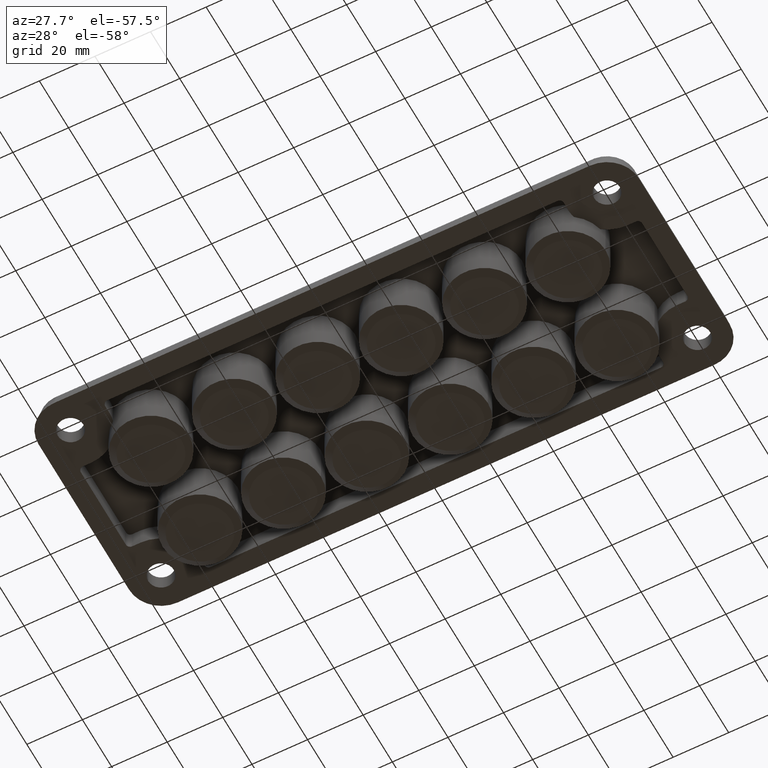
[diagram: clean part render]
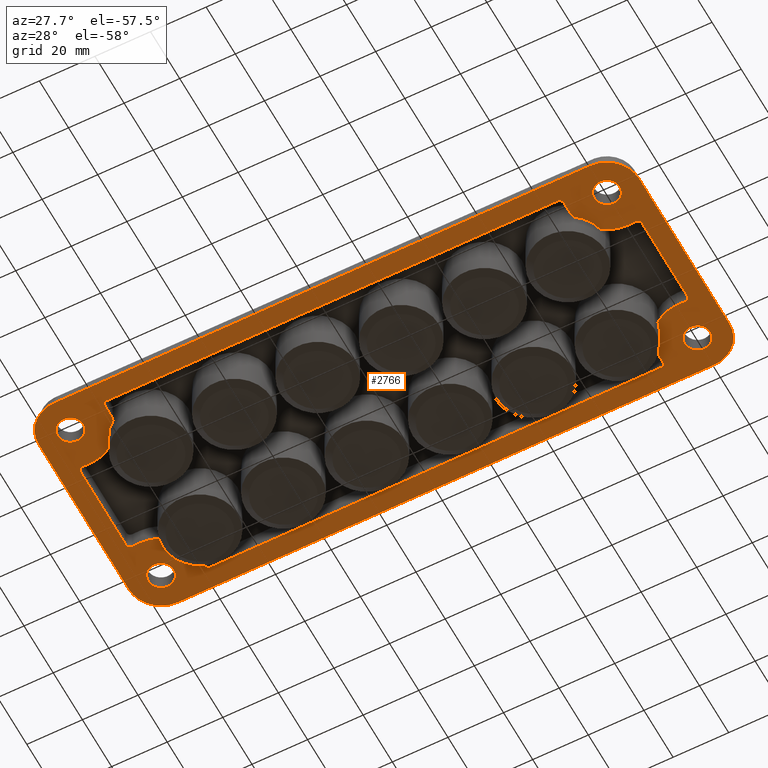
[diagram: same view with one face highlighted and labeled with its STEP entity id]
A machine part, auxiliary view. The second image highlights one B-rep face of the part: STEP entity #2766.
In plain terms, the highlighted planar face has unit normal (-0, 0, -1).
Its self-contained STEP definition (entity closure, byte-faithful):
#13 = EDGE_CURVE ( 'NONE', #1695, #3143, #4645, .T. ) ;
#21 = VERTEX_POINT ( 'NONE', #242 ) ;
#35 = DIRECTION ( 'NONE',  ( 1.000000000000000000, 0.0000000000000000000, 0.0000000000000000000 ) ) ;
#40 = VERTEX_POINT ( 'NONE', #958 ) ;
#47 = EDGE_CURVE ( 'NONE', #1801, #4639, #1500, .T. ) ;
#50 = EDGE_CURVE ( 'NONE', #1746, #1924, #3616, .T. ) ;
#62 = CARTESIAN_POINT ( 'NONE',  ( -81.00000000000000000, 35.50000000000000700, 0.0000000000000000000 ) ) ;
#77 = CARTESIAN_POINT ( 'NONE',  ( 101.0000000000000000, -15.49999999999997300, 0.0000000000000000000 ) ) ;
#91 = VERTEX_POINT ( 'NONE', #4095 ) ;
#92 = DIRECTION ( 'NONE',  ( -1.000000000000000000, 0.0000000000000000000, 0.0000000000000000000 ) ) ;
#99 = DIRECTION ( 'NONE',  ( -1.000000000000000000, 0.0000000000000000000, 0.0000000000000000000 ) ) ;
#103 = AXIS2_PLACEMENT_3D ( 'NONE', #2184, #1805, #2934 ) ;
#107 = CIRCLE ( 'NONE', #3050, 11.50000000000001100 ) ;
#130 = PLANE ( 'NONE',  #3017 ) ;
#136 = EDGE_CURVE ( 'NONE', #865, #4223, #486, .T. ) ;
#146 = CARTESIAN_POINT ( 'NONE',  ( -96.50000000000000000, 30.99999999999998900, 0.0000000000000000000 ) ) ;
#154 = VERTEX_POINT ( 'NONE', #769 ) ;
#161 = VECTOR ( 'NONE', #3355, 1000.000000000000000 ) ;
#167 = DIRECTION ( 'NONE',  ( -2.238352872228139600E-016, -1.000000000000000000, -0.0000000000000000000 ) ) ;
#173 = EDGE_CURVE ( 'NONE', #1775, #1958, #1026, .T. ) ;
#174 = FACE_BOUND ( 'NONE', #1510, .T. ) ;
#178 = CARTESIAN_POINT ( 'NONE',  ( 96.50000000000000000, -31.00000000000000000, 0.0000000000000000000 ) ) ;
#183 = DIRECTION ( 'NONE',  ( 0.0000000000000000000, 0.0000000000000000000, 1.000000000000000000 ) ) ;
#187 = DIRECTION ( 'NONE',  ( -1.000000000000000000, 0.0000000000000000000, 0.0000000000000000000 ) ) ;
#201 = EDGE_LOOP ( 'NONE', ( #2364, #4889 ) ) ;
#203 = ORIENTED_EDGE ( 'NONE', *, *, #4744, .F. ) ;
#215 = LINE ( 'NONE', #4301, #1815 ) ;
#222 = CARTESIAN_POINT ( 'NONE',  ( 107.9999999999999700, 30.99999999999999300, 0.0000000000000000000 ) ) ;
#225 = FACE_BOUND ( 'NONE', #201, .T. ) ;
#235 = CARTESIAN_POINT ( 'NONE',  ( -96.50000000000000000, 30.99999999999998600, 0.0000000000000000000 ) ) ;
#242 = CARTESIAN_POINT ( 'NONE',  ( -82.50000000000000000, 31.00000000000000000, 0.0000000000000000000 ) ) ;
#260 = DIRECTION ( 'NONE',  ( -1.000000000000000000, 0.0000000000000000000, 0.0000000000000000000 ) ) ;
#274 = AXIS2_PLACEMENT_3D ( 'NONE', #1136, #3011, #1898 ) ;
#281 = AXIS2_PLACEMENT_3D ( 'NONE', #337, #4073, #1089 ) ;
#282 = DIRECTION ( 'NONE',  ( 0.0000000000000000000, -1.000000000000000000, 0.0000000000000000000 ) ) ;
#288 = DIRECTION ( 'NONE',  ( 4.625929269271567400E-015, 1.000000000000000000, -0.0000000000000000000 ) ) ;
#289 = DIRECTION ( 'NONE',  ( 0.0000000000000000000, 0.0000000000000000000, -1.000000000000000000 ) ) ;
#292 = CIRCLE ( 'NONE', #831, 4.599999999999992500 ) ;
#293 = CARTESIAN_POINT ( 'NONE',  ( -96.50000000000000000, 30.99999999999998600, 0.0000000000000000000 ) ) ;
#321 = EDGE_CURVE ( 'NONE', #1988, #4271, #2317, .T. ) ;
#327 = DIRECTION ( 'NONE',  ( -1.000000000000000000, 0.0000000000000000000, 0.0000000000000000000 ) ) ;
#332 = DIRECTION ( 'NONE',  ( -1.000000000000000000, 0.0000000000000000000, 0.0000000000000000000 ) ) ;
#337 = CARTESIAN_POINT ( 'NONE',  ( 96.50000000000000000, -31.00000000000005700, 0.0000000000000000000 ) ) ;
#385 = CARTESIAN_POINT ( 'NONE',  ( 82.50000000000001400, -33.99999999999993600, 0.0000000000000000000 ) ) ;
#387 = ORIENTED_EDGE ( 'NONE', *, *, #3052, .F. ) ;
#411 = DIRECTION ( 'NONE',  ( -1.000000000000000000, 0.0000000000000000000, 0.0000000000000000000 ) ) ;
#458 = EDGE_CURVE ( 'NONE', #154, #2304, #4455, .T. ) ;
#461 = CIRCLE ( 'NONE', #3471, 13.49999999999999800 ) ;
#482 = CARTESIAN_POINT ( 'NONE',  ( -99.50000000000000000, 16.99999999999999300, 0.0000000000000000000 ) ) ;
#486 = LINE ( 'NONE', #2933, #2380 ) ;
#492 = VERTEX_POINT ( 'NONE', #3755 ) ;
#530 = CARTESIAN_POINT ( 'NONE',  ( 82.87964365212545200, 27.76180714642976000, 0.0000000000000000000 ) ) ;
#543 = EDGE_CURVE ( 'NONE', #1694, #3489, #1434, .T. ) ;
#559 = VERTEX_POINT ( 'NONE', #2960 ) ;
#570 = CARTESIAN_POINT ( 'NONE',  ( 96.50000000000000000, 30.99999999999994300, 0.0000000000000000000 ) ) ;
#583 = EDGE_CURVE ( 'NONE', #4600, #154, #2666, .T. ) ;
#597 = VERTEX_POINT ( 'NONE', #2658 ) ;
#602 = CARTESIAN_POINT ( 'NONE',  ( 99.50000000000000000, -15.49999999999997300, 0.0000000000000000000 ) ) ;
#631 = CIRCLE ( 'NONE', #3827, 4.599999999999992500 ) ;
#641 = DIRECTION ( 'NONE',  ( -1.000000000000000000, 0.0000000000000000000, 0.0000000000000000000 ) ) ;
#644 = DIRECTION ( 'NONE',  ( 1.000000000000000000, 0.0000000000000000000, 0.0000000000000000000 ) ) ;
#645 = EDGE_CURVE ( 'NONE', #2090, #2451, #2427, .T. ) ;
#652 = AXIS2_PLACEMENT_3D ( 'NONE', #2486, #4396, #2102 ) ;
#657 = CARTESIAN_POINT ( 'NONE',  ( -96.50000000000000000, -17.00000000000000000, 0.0000000000000000000 ) ) ;
#660 = ORIENTED_EDGE ( 'NONE', *, *, #3543, .T. ) ;
#675 = VERTEX_POINT ( 'NONE', #3466 ) ;
#707 = EDGE_CURVE ( 'NONE', #4639, #1988, #2140, .T. ) ;
#729 = DIRECTION ( 'NONE',  ( 0.0000000000000000000, 0.0000000000000000000, 1.000000000000000000 ) ) ;
#735 = VECTOR ( 'NONE', #2125, 1000.000000000000000 ) ;
#756 = EDGE_LOOP ( 'NONE', ( #2503, #4465 ) ) ;
#760 = CIRCLE ( 'NONE', #1814, 1.499999999999987600 ) ;
#761 = CIRCLE ( 'NONE', #3277, 4.599999999999992500 ) ;
#769 = CARTESIAN_POINT ( 'NONE',  ( -81.00000000000001400, -35.50000000000004300, 0.0000000000000000000 ) ) ;
#772 = CARTESIAN_POINT ( 'NONE',  ( 91.90000000000000600, -31.00000000000005700, 0.0000000000000000000 ) ) ;
#781 = CARTESIAN_POINT ( 'NONE',  ( -99.50000000000000000, 15.49999999999999800, 0.0000000000000000000 ) ) ;
#783 = DIRECTION ( 'NONE',  ( -4.625929269271556300E-015, -1.000000000000000000, -0.0000000000000000000 ) ) ;
#813 = ORIENTED_EDGE ( 'NONE', *, *, #4456, .F. ) ;
#827 = CIRCLE ( 'NONE', #103, 1.500000000000056800 ) ;
#831 = AXIS2_PLACEMENT_3D ( 'NONE', #1833, #1060, #2932 ) ;
#841 = CARTESIAN_POINT ( 'NONE',  ( 96.50000000000000000, -16.99999999999997900, 0.0000000000000000000 ) ) ;
#865 = VERTEX_POINT ( 'NONE', #657 ) ;
#868 = DIRECTION ( 'NONE',  ( 1.000000000000000000, 0.0000000000000000000, 0.0000000000000000000 ) ) ;
#873 = CIRCLE ( 'NONE', #3571, 11.50000000000001100 ) ;
#882 = CIRCLE ( 'NONE', #4253, 13.99999999999999800 ) ;
#893 = DIRECTION ( 'NONE',  ( -0.0000000000000000000, 0.0000000000000000000, -1.000000000000000000 ) ) ;
#894 = CARTESIAN_POINT ( 'NONE',  ( -82.50000000000002800, -30.99999999999997900, 0.0000000000000000000 ) ) ;
#902 = CARTESIAN_POINT ( 'NONE',  ( -107.9999999999999900, -30.99999999999996400, 0.0000000000000000000 ) ) ;
#916 = DIRECTION ( 'NONE',  ( 1.000000000000000000, 0.0000000000000000000, 0.0000000000000000000 ) ) ;
#934 = AXIS2_PLACEMENT_3D ( 'NONE', #4246, #3101, #868 ) ;
#935 = CARTESIAN_POINT ( 'NONE',  ( 96.50000000000000000, 31.00000000000000000, 0.0000000000000000000 ) ) ;
#956 = AXIS2_PLACEMENT_3D ( 'NONE', #293, #2589, #332 ) ;
#958 = CARTESIAN_POINT ( 'NONE',  ( 96.49999999999997200, 42.50000000000000000, 0.0000000000000000000 ) ) ;
#982 = ORIENTED_EDGE ( 'NONE', *, *, #1568, .F. ) ;
#984 = EDGE_CURVE ( 'NONE', #2304, #1775, #3664, .T. ) ;
#987 = EDGE_LOOP ( 'NONE', ( #1386, #813, #3681, #4836, #3054, #4577, #2426, #4151 ) ) ;
#995 = LINE ( 'NONE', #1358, #3939 ) ;
#1008 = ORIENTED_EDGE ( 'NONE', *, *, #2759, .F. ) ;
#1023 = CARTESIAN_POINT ( 'NONE',  ( 82.50000000000001400, 31.00000000000000000, 0.0000000000000000000 ) ) ;
#1026 = CIRCLE ( 'NONE', #4431, 13.99999999999999800 ) ;
#1044 = CIRCLE ( 'NONE', #274, 13.49999999999999800 ) ;
#1060 = DIRECTION ( 'NONE',  ( 0.0000000000000000000, 0.0000000000000000000, 1.000000000000000000 ) ) ;
#1089 = DIRECTION ( 'NONE',  ( -1.000000000000000000, 0.0000000000000000000, 0.0000000000000000000 ) ) ;
#1118 = DIRECTION ( 'NONE',  ( -1.000000000000000000, 0.0000000000000000000, 0.0000000000000000000 ) ) ;
#1133 = EDGE_CURVE ( 'NONE', #4271, #3635, #2599, .T. ) ;
#1136 = CARTESIAN_POINT ( 'NONE',  ( -75.00000000000000000, 16.79999999999999400, 0.0000000000000000000 ) ) ;
#1148 = AXIS2_PLACEMENT_3D ( 'NONE', #781, #1530, #3747 ) ;
#1165 = CARTESIAN_POINT ( 'NONE',  ( -96.50000000000000000, 16.99999999999999600, 0.0000000000000000000 ) ) ;
#1178 = CIRCLE ( 'NONE', #934, 1.500000000000056800 ) ;
#1183 = DIRECTION ( 'NONE',  ( -0.0000000000000000000, -0.0000000000000000000, -1.000000000000000000 ) ) ;
#1207 = VERTEX_POINT ( 'NONE', #2393 ) ;
#1226 = CARTESIAN_POINT ( 'NONE',  ( -91.90000000000000600, 30.99999999999998600, 0.0000000000000000000 ) ) ;
#1274 = CIRCLE ( 'NONE', #3764, 13.99999999999999800 ) ;
#1289 = DIRECTION ( 'NONE',  ( -1.000000000000000000, 0.0000000000000000000, 0.0000000000000000000 ) ) ;
#1313 = VERTEX_POINT ( 'NONE', #3200 ) ;
#1326 = ORIENTED_EDGE ( 'NONE', *, *, #3717, .F. ) ;
#1343 = LINE ( 'NONE', #4462, #3403 ) ;
#1344 = EDGE_CURVE ( 'NONE', #2796, #21, #2191, .T. ) ;
#1358 = CARTESIAN_POINT ( 'NONE',  ( 101.0000000000000000, 15.49999999999999800, 0.0000000000000000000 ) ) ;
#1359 = ORIENTED_EDGE ( 'NONE', *, *, #3485, .F. ) ;
#1360 = AXIS2_PLACEMENT_3D ( 'NONE', #4666, #183, #2062 ) ;
#1381 = ORIENTED_EDGE ( 'NONE', *, *, #2076, .F. ) ;
#1386 = ORIENTED_EDGE ( 'NONE', *, *, #4707, .F. ) ;
#1400 = EDGE_CURVE ( 'NONE', #675, #4881, #292, .T. ) ;
#1434 = CIRCLE ( 'NONE', #956, 4.599999999999992500 ) ;
#1483 = VERTEX_POINT ( 'NONE', #1023 ) ;
#1497 = VERTEX_POINT ( 'NONE', #4840 ) ;
#1500 = CIRCLE ( 'NONE', #2175, 13.49999999999999800 ) ;
#1503 = CARTESIAN_POINT ( 'NONE',  ( -99.50000000000000000, -15.49999999999997300, 0.0000000000000000000 ) ) ;
#1510 = EDGE_LOOP ( 'NONE', ( #2627, #4512 ) ) ;
#1530 = DIRECTION ( 'NONE',  ( 0.0000000000000000000, 0.0000000000000000000, -1.000000000000000000 ) ) ;
#1568 = EDGE_CURVE ( 'NONE', #2771, #2796, #1044, .T. ) ;
#1572 = CARTESIAN_POINT ( 'NONE',  ( -82.50000000000000000, 33.99999999999995000, 0.0000000000000000000 ) ) ;
#1586 = EDGE_CURVE ( 'NONE', #1924, #40, #873, .T. ) ;
#1588 = CIRCLE ( 'NONE', #4569, 13.99999999999999800 ) ;
#1595 = DIRECTION ( 'NONE',  ( 1.000000000000000000, 0.0000000000000000000, 0.0000000000000000000 ) ) ;
#1607 = VERTEX_POINT ( 'NONE', #4511 ) ;
#1625 = ORIENTED_EDGE ( 'NONE', *, *, #3776, .F. ) ;
#1636 = VERTEX_POINT ( 'NONE', #2615 ) ;
#1648 = ORIENTED_EDGE ( 'NONE', *, *, #2514, .F. ) ;
#1656 = LINE ( 'NONE', #2024, #3523 ) ;
#1668 = CARTESIAN_POINT ( 'NONE',  ( 96.50000000000000000, -16.99999999999997900, 0.0000000000000000000 ) ) ;
#1669 = EDGE_CURVE ( 'NONE', #1607, #3562, #2689, .T. ) ;
#1694 = VERTEX_POINT ( 'NONE', #1226 ) ;
#1695 = VERTEX_POINT ( 'NONE', #482 ) ;
#1701 = DIRECTION ( 'NONE',  ( 1.000000000000000000, 0.0000000000000000000, 0.0000000000000000000 ) ) ;
#1707 = CARTESIAN_POINT ( 'NONE',  ( -82.87964365212545200, 27.76180714642976000, 0.0000000000000000000 ) ) ;
#1710 = CARTESIAN_POINT ( 'NONE',  ( 82.50000000000001400, -33.99999999999993600, 0.0000000000000000000 ) ) ;
#1713 = FACE_OUTER_BOUND ( 'NONE', #987, .T. ) ;
#1725 = ORIENTED_EDGE ( 'NONE', *, *, #3965, .T. ) ;
#1727 = VECTOR ( 'NONE', #2626, 1000.000000000000000 ) ;
#1746 = VERTEX_POINT ( 'NONE', #4345 ) ;
#1747 = ORIENTED_EDGE ( 'NONE', *, *, #321, .F. ) ;
#1760 = CARTESIAN_POINT ( 'NONE',  ( 107.9999999999999900, -30.99999999999996400, 0.0000000000000000000 ) ) ;
#1763 = CARTESIAN_POINT ( 'NONE',  ( -81.00000000000001400, -33.99999999999993600, 0.0000000000000000000 ) ) ;
#1769 = DIRECTION ( 'NONE',  ( -1.000000000000000000, 0.0000000000000000000, 0.0000000000000000000 ) ) ;
#1770 = AXIS2_PLACEMENT_3D ( 'NONE', #2784, #4320, #92 ) ;
#1775 = VERTEX_POINT ( 'NONE', #894 ) ;
#1795 = ORIENTED_EDGE ( 'NONE', *, *, #136, .F. ) ;
#1801 = VERTEX_POINT ( 'NONE', #530 ) ;
#1805 = DIRECTION ( 'NONE',  ( 0.0000000000000000000, 0.0000000000000000000, -1.000000000000000000 ) ) ;
#1814 = AXIS2_PLACEMENT_3D ( 'NONE', #1503, #1183, #1595 ) ;
#1815 = VECTOR ( 'NONE', #3114, 1000.000000000000000 ) ;
#1829 = EDGE_CURVE ( 'NONE', #2451, #1607, #1274, .T. ) ;
#1833 = CARTESIAN_POINT ( 'NONE',  ( -96.50000000000001400, -31.00000000000001400, 0.0000000000000000000 ) ) ;
#1835 = CARTESIAN_POINT ( 'NONE',  ( 96.50000000000000000, 30.99999999999994300, 0.0000000000000000000 ) ) ;
#1848 = VERTEX_POINT ( 'NONE', #3168 ) ;
#1866 = VERTEX_POINT ( 'NONE', #4672 ) ;
#1870 = CARTESIAN_POINT ( 'NONE',  ( 101.0000000000000000, 15.49999999999999800, 0.0000000000000000000 ) ) ;
#1885 = CARTESIAN_POINT ( 'NONE',  ( -96.49999999999997200, 42.50000000000004300, 0.0000000000000000000 ) ) ;
#1898 = DIRECTION ( 'NONE',  ( -1.000000000000000000, 0.0000000000000000000, 0.0000000000000000000 ) ) ;
#1924 = VERTEX_POINT ( 'NONE', #222 ) ;
#1929 = DIRECTION ( 'NONE',  ( -1.000000000000000000, -5.782411586589351700E-015, -0.0000000000000000000 ) ) ;
#1932 = AXIS2_PLACEMENT_3D ( 'NONE', #4709, #2041, #916 ) ;
#1933 = CIRCLE ( 'NONE', #1360, 13.99999999999999800 ) ;
#1958 = VERTEX_POINT ( 'NONE', #4001 ) ;
#1977 = CARTESIAN_POINT ( 'NONE',  ( -82.50000000000007100, -33.99999999999993600, 0.0000000000000000000 ) ) ;
#1986 = CARTESIAN_POINT ( 'NONE',  ( 75.00000000000000000, -16.80000000000001100, 0.0000000000000000000 ) ) ;
#1988 = VERTEX_POINT ( 'NONE', #4765 ) ;
#2007 = CIRCLE ( 'NONE', #4180, 13.99999999999999800 ) ;
#2024 = CARTESIAN_POINT ( 'NONE',  ( -107.9999999999999900, -30.99999999999996400, 0.0000000000000000000 ) ) ;
#2026 = EDGE_LOOP ( 'NONE', ( #3930, #203, #4825, #1008, #1381, #387, #2147, #4828, #982, #2965, #3978, #2198, #2161, #1625, #1795, #1359, #4892, #2211, #3611, #3492, #4110, #1648, #3651, #1326, #3551, #2104, #2864, #2035, #2741, #3505, #1747, #3633 ) ) ;
#2035 = ORIENTED_EDGE ( 'NONE', *, *, #3525, .F. ) ;
#2041 = DIRECTION ( 'NONE',  ( -0.0000000000000000000, -0.0000000000000000000, -1.000000000000000000 ) ) ;
#2062 = DIRECTION ( 'NONE',  ( 1.000000000000000000, 0.0000000000000000000, 0.0000000000000000000 ) ) ;
#2076 = EDGE_CURVE ( 'NONE', #4655, #4713, #2681, .T. ) ;
#2090 = VERTEX_POINT ( 'NONE', #3667 ) ;
#2095 = AXIS2_PLACEMENT_3D ( 'NONE', #602, #3218, #4838 ) ;
#2101 = DIRECTION ( 'NONE',  ( -0.0000000000000000000, -0.0000000000000000000, 1.000000000000000000 ) ) ;
#2102 = DIRECTION ( 'NONE',  ( 1.000000000000000000, 0.0000000000000000000, 0.0000000000000000000 ) ) ;
#2104 = ORIENTED_EDGE ( 'NONE', *, *, #1829, .F. ) ;
#2125 = DIRECTION ( 'NONE',  ( 1.000000000000000000, 3.469446951953611000E-015, -0.0000000000000000000 ) ) ;
#2140 = CIRCLE ( 'NONE', #1770, 13.99999999999999800 ) ;
#2143 = VERTEX_POINT ( 'NONE', #1572 ) ;
#2144 = DIRECTION ( 'NONE',  ( 0.0000000000000000000, 0.0000000000000000000, 1.000000000000000000 ) ) ;
#2147 = ORIENTED_EDGE ( 'NONE', *, *, #2976, .F. ) ;
#2149 = DIRECTION ( 'NONE',  ( -0.0000000000000000000, -0.0000000000000000000, -1.000000000000000000 ) ) ;
#2161 = ORIENTED_EDGE ( 'NONE', *, *, #3549, .F. ) ;
#2165 = CARTESIAN_POINT ( 'NONE',  ( 96.50000000000001400, -30.99999999999996800, 0.0000000000000000000 ) ) ;
#2175 = AXIS2_PLACEMENT_3D ( 'NONE', #2890, #2149, #4804 ) ;
#2184 = CARTESIAN_POINT ( 'NONE',  ( -81.00000000000000000, 33.99999999999995000, 0.0000000000000000000 ) ) ;
#2191 = CIRCLE ( 'NONE', #652, 13.99999999999999800 ) ;
#2198 = ORIENTED_EDGE ( 'NONE', *, *, #3104, .F. ) ;
#2211 = ORIENTED_EDGE ( 'NONE', *, *, #173, .F. ) ;
#2236 = DIRECTION ( 'NONE',  ( -1.000000000000000000, 0.0000000000000000000, 0.0000000000000000000 ) ) ;
#2239 = DIRECTION ( 'NONE',  ( -1.000000000000000000, 5.782411586589351700E-015, 0.0000000000000000000 ) ) ;
#2283 = CARTESIAN_POINT ( 'NONE',  ( -96.50000000000000000, -31.00000000000000000, 0.0000000000000000000 ) ) ;
#2295 = DIRECTION ( 'NONE',  ( 0.0000000000000000000, 0.0000000000000000000, 1.000000000000000000 ) ) ;
#2304 = VERTEX_POINT ( 'NONE', #1977 ) ;
#2310 = DIRECTION ( 'NONE',  ( 0.0000000000000000000, 0.0000000000000000000, 1.000000000000000000 ) ) ;
#2317 = LINE ( 'NONE', #3273, #4573 ) ;
#2355 = CARTESIAN_POINT ( 'NONE',  ( -96.50000000000001400, -31.00000000000001400, 0.0000000000000000000 ) ) ;
#2364 = ORIENTED_EDGE ( 'NONE', *, *, #2900, .T. ) ;
#2380 = VECTOR ( 'NONE', #2239, 1000.000000000000000 ) ;
#2388 = CARTESIAN_POINT ( 'NONE',  ( -96.50000000000000000, 30.99999999999998900, 0.0000000000000000000 ) ) ;
#2393 = CARTESIAN_POINT ( 'NONE',  ( 82.50000000000005700, 33.99999999999995000, 0.0000000000000000000 ) ) ;
#2401 = CIRCLE ( 'NONE', #2095, 1.499999999999987600 ) ;
#2406 = DIRECTION ( 'NONE',  ( 1.000000000000000000, 0.0000000000000000000, 0.0000000000000000000 ) ) ;
#2426 = ORIENTED_EDGE ( 'NONE', *, *, #4086, .F. ) ;
#2427 = LINE ( 'NONE', #841, #3125 ) ;
#2428 = DIRECTION ( 'NONE',  ( 0.0000000000000000000, 0.0000000000000000000, 1.000000000000000000 ) ) ;
#2433 = CARTESIAN_POINT ( 'NONE',  ( 81.00000000000000000, 35.50000000000005700, 0.0000000000000000000 ) ) ;
#2451 = VERTEX_POINT ( 'NONE', #1668 ) ;
#2471 = AXIS2_PLACEMENT_3D ( 'NONE', #1986, #4653, #3834 ) ;
#2481 = CARTESIAN_POINT ( 'NONE',  ( -101.1000000000000100, -31.00000000000001400, 0.0000000000000000000 ) ) ;
#2486 = CARTESIAN_POINT ( 'NONE',  ( -96.50000000000000000, 31.00000000000000000, 0.0000000000000000000 ) ) ;
#2503 = ORIENTED_EDGE ( 'NONE', *, *, #543, .T. ) ;
#2506 = CARTESIAN_POINT ( 'NONE',  ( -96.50000000000000000, 16.99999999999999600, 0.0000000000000000000 ) ) ;
#2510 = CIRCLE ( 'NONE', #2874, 4.599999999999992500 ) ;
#2514 = EDGE_CURVE ( 'NONE', #3445, #4600, #3826, .T. ) ;
#2515 = LINE ( 'NONE', #385, #4419 ) ;
#2518 = DIRECTION ( 'NONE',  ( 0.0000000000000000000, 0.0000000000000000000, 1.000000000000000000 ) ) ;
#2542 = CARTESIAN_POINT ( 'NONE',  ( 82.87964365212543800, -27.76180714642980300, 0.0000000000000000000 ) ) ;
#2549 = CARTESIAN_POINT ( 'NONE',  ( -82.50000000000000000, 33.99999999999995000, 0.0000000000000000000 ) ) ;
#2589 = DIRECTION ( 'NONE',  ( 0.0000000000000000000, 0.0000000000000000000, 1.000000000000000000 ) ) ;
#2597 = EDGE_LOOP ( 'NONE', ( #1725, #660 ) ) ;
#2599 = CIRCLE ( 'NONE', #1932, 1.500000000000001300 ) ;
#2615 = CARTESIAN_POINT ( 'NONE',  ( 101.0999999999999900, -31.00000000000005700, 0.0000000000000000000 ) ) ;
#2626 = DIRECTION ( 'NONE',  ( -4.625929269271556300E-015, 1.000000000000000000, 0.0000000000000000000 ) ) ;
#2627 = ORIENTED_EDGE ( 'NONE', *, *, #1400, .T. ) ;
#2649 = CARTESIAN_POINT ( 'NONE',  ( 99.50000000000000000, 16.99999999999998600, 0.0000000000000000000 ) ) ;
#2658 = CARTESIAN_POINT ( 'NONE',  ( -101.0000000000000000, 15.49999999999999800, 0.0000000000000000000 ) ) ;
#2666 = LINE ( 'NONE', #4183, #4449 ) ;
#2681 = LINE ( 'NONE', #4505, #4348 ) ;
#2689 = CIRCLE ( 'NONE', #2471, 13.49999999999999800 ) ;
#2733 = CARTESIAN_POINT ( 'NONE',  ( 81.00000000000001400, -35.49999999999999300, 0.0000000000000000000 ) ) ;
#2741 = ORIENTED_EDGE ( 'NONE', *, *, #4912, .F. ) ;
#2751 = CIRCLE ( 'NONE', #4610, 11.50000000000001100 ) ;
#2759 = EDGE_CURVE ( 'NONE', #4713, #1207, #1178, .T. ) ;
#2766 = ADVANCED_FACE ( 'NONE', ( #3770, #3468, #225, #174, #4127, #1713 ), #130, .T. ) ;
#2771 = VERTEX_POINT ( 'NONE', #3900 ) ;
#2784 = CARTESIAN_POINT ( 'NONE',  ( 96.50000000000000000, 31.00000000000000000, 0.0000000000000000000 ) ) ;
#2796 = VERTEX_POINT ( 'NONE', #1707 ) ;
#2815 = DIRECTION ( 'NONE',  ( -0.0000000000000000000, -0.0000000000000000000, 1.000000000000000000 ) ) ;
#2818 = VECTOR ( 'NONE', #288, 1000.000000000000000 ) ;
#2864 = ORIENTED_EDGE ( 'NONE', *, *, #645, .F. ) ;
#2865 = CARTESIAN_POINT ( 'NONE',  ( -96.50000000000000000, -31.00000000000000000, 0.0000000000000000000 ) ) ;
#2874 = AXIS2_PLACEMENT_3D ( 'NONE', #3425, #2310, #411 ) ;
#2890 = CARTESIAN_POINT ( 'NONE',  ( 75.00000000000000000, 16.79999999999999400, 0.0000000000000000000 ) ) ;
#2900 = EDGE_CURVE ( 'NONE', #559, #1848, #3590, .T. ) ;
#2932 = DIRECTION ( 'NONE',  ( -1.000000000000000000, 0.0000000000000000000, 0.0000000000000000000 ) ) ;
#2933 = CARTESIAN_POINT ( 'NONE',  ( -96.50000000000000000, -16.99999999999997900, 0.0000000000000000000 ) ) ;
#2934 = DIRECTION ( 'NONE',  ( -1.000000000000000000, 0.0000000000000000000, 0.0000000000000000000 ) ) ;
#2938 = EDGE_CURVE ( 'NONE', #1958, #4473, #461, .T. ) ;
#2960 = CARTESIAN_POINT ( 'NONE',  ( 101.0999999999999900, 30.99999999999994300, 0.0000000000000000000 ) ) ;
#2965 = ORIENTED_EDGE ( 'NONE', *, *, #4161, .F. ) ;
#2976 = EDGE_CURVE ( 'NONE', #21, #2143, #3709, .T. ) ;
#2984 = CARTESIAN_POINT ( 'NONE',  ( -99.50000000000000000, -16.99999999999996100, 0.0000000000000000000 ) ) ;
#2989 = CARTESIAN_POINT ( 'NONE',  ( -96.49999999999997200, 42.50000000000004300, 0.0000000000000000000 ) ) ;
#2990 = DIRECTION ( 'NONE',  ( -0.0000000000000000000, -0.0000000000000000000, 1.000000000000000000 ) ) ;
#2998 = CARTESIAN_POINT ( 'NONE',  ( -88.17506420610409600, -19.74409292737762600, 0.0000000000000000000 ) ) ;
#3011 = DIRECTION ( 'NONE',  ( -0.0000000000000000000, -0.0000000000000000000, -1.000000000000000000 ) ) ;
#3017 = AXIS2_PLACEMENT_3D ( 'NONE', #146, #893, #3522 ) ;
#3039 = DIRECTION ( 'NONE',  ( 4.625929269271567400E-015, -1.000000000000000000, 0.0000000000000000000 ) ) ;
#3050 = AXIS2_PLACEMENT_3D ( 'NONE', #2165, #2144, #1769 ) ;
#3052 = EDGE_CURVE ( 'NONE', #2143, #4655, #827, .T. ) ;
#3054 = ORIENTED_EDGE ( 'NONE', *, *, #4323, .F. ) ;
#3056 = DIRECTION ( 'NONE',  ( 0.0000000000000000000, 0.0000000000000000000, 1.000000000000000000 ) ) ;
#3096 = AXIS2_PLACEMENT_3D ( 'NONE', #2388, #3131, #3552 ) ;
#3101 = DIRECTION ( 'NONE',  ( -0.0000000000000000000, -0.0000000000000000000, -1.000000000000000000 ) ) ;
#3104 = EDGE_CURVE ( 'NONE', #597, #1695, #3219, .T. ) ;
#3114 = DIRECTION ( 'NONE',  ( 1.000000000000000000, 0.0000000000000000000, 0.0000000000000000000 ) ) ;
#3125 = VECTOR ( 'NONE', #1929, 1000.000000000000000 ) ;
#3131 = DIRECTION ( 'NONE',  ( 0.0000000000000000000, 0.0000000000000000000, 1.000000000000000000 ) ) ;
#3143 = VERTEX_POINT ( 'NONE', #1165 ) ;
#3168 = CARTESIAN_POINT ( 'NONE',  ( 91.90000000000000600, 30.99999999999994300, 0.0000000000000000000 ) ) ;
#3200 = CARTESIAN_POINT ( 'NONE',  ( -100.9999999999999900, -15.49999999999997300, 0.0000000000000000000 ) ) ;
#3216 = LINE ( 'NONE', #2989, #161 ) ;
#3218 = DIRECTION ( 'NONE',  ( 0.0000000000000000000, 0.0000000000000000000, -1.000000000000000000 ) ) ;
#3219 = CIRCLE ( 'NONE', #1148, 1.500000000000001300 ) ;
#3241 = DIRECTION ( 'NONE',  ( -1.000000000000000000, 0.0000000000000000000, 0.0000000000000000000 ) ) ;
#3270 = CIRCLE ( 'NONE', #3926, 4.599999999999992500 ) ;
#3273 = CARTESIAN_POINT ( 'NONE',  ( 96.50000000000000000, 16.99999999999999600, 0.0000000000000000000 ) ) ;
#3277 = AXIS2_PLACEMENT_3D ( 'NONE', #1835, #729, #2236 ) ;
#3287 = DIRECTION ( 'NONE',  ( -0.0000000000000000000, -0.0000000000000000000, -1.000000000000000000 ) ) ;
#3305 = DIRECTION ( 'NONE',  ( -0.0000000000000000000, -0.0000000000000000000, -1.000000000000000000 ) ) ;
#3319 = EDGE_CURVE ( 'NONE', #1866, #4159, #1656, .T. ) ;
#3355 = DIRECTION ( 'NONE',  ( -1.000000000000000000, -0.0000000000000000000, -0.0000000000000000000 ) ) ;
#3364 = DIRECTION ( 'NONE',  ( 1.000000000000000000, 0.0000000000000000000, 0.0000000000000000000 ) ) ;
#3403 = VECTOR ( 'NONE', #3721, 1000.000000000000000 ) ;
#3425 = CARTESIAN_POINT ( 'NONE',  ( 96.50000000000000000, -31.00000000000005700, 0.0000000000000000000 ) ) ;
#3435 = CARTESIAN_POINT ( 'NONE',  ( 88.17506420610408200, 19.74409292737762900, 0.0000000000000000000 ) ) ;
#3445 = VERTEX_POINT ( 'NONE', #1710 ) ;
#3466 = CARTESIAN_POINT ( 'NONE',  ( -91.90000000000002000, -31.00000000000001400, 0.0000000000000000000 ) ) ;
#3468 = FACE_BOUND ( 'NONE', #2597, .T. ) ;
#3471 = AXIS2_PLACEMENT_3D ( 'NONE', #4299, #3305, #327 ) ;
#3477 = EDGE_CURVE ( 'NONE', #3489, #1694, #3270, .T. ) ;
#3485 = EDGE_CURVE ( 'NONE', #4473, #865, #2007, .T. ) ;
#3489 = VERTEX_POINT ( 'NONE', #4771 ) ;
#3492 = ORIENTED_EDGE ( 'NONE', *, *, #458, .F. ) ;
#3505 = ORIENTED_EDGE ( 'NONE', *, *, #1133, .F. ) ;
#3522 = DIRECTION ( 'NONE',  ( -1.000000000000000000, 0.0000000000000000000, 0.0000000000000000000 ) ) ;
#3523 = VECTOR ( 'NONE', #167, 1000.000000000000000 ) ;
#3525 = EDGE_CURVE ( 'NONE', #3814, #2090, #2401, .T. ) ;
#3541 = DIRECTION ( 'NONE',  ( 0.0000000000000000000, 0.0000000000000000000, 1.000000000000000000 ) ) ;
#3543 = EDGE_CURVE ( 'NONE', #3868, #1636, #4303, .T. ) ;
#3549 = EDGE_CURVE ( 'NONE', #1313, #597, #1343, .T. ) ;
#3551 = ORIENTED_EDGE ( 'NONE', *, *, #1669, .F. ) ;
#3552 = DIRECTION ( 'NONE',  ( -1.000000000000000000, 0.0000000000000000000, 0.0000000000000000000 ) ) ;
#3562 = VERTEX_POINT ( 'NONE', #2542 ) ;
#3571 = AXIS2_PLACEMENT_3D ( 'NONE', #4126, #2295, #35 ) ;
#3590 = CIRCLE ( 'NONE', #4248, 4.599999999999992500 ) ;
#3593 = DIRECTION ( 'NONE',  ( 0.0000000000000000000, 0.0000000000000000000, 1.000000000000000000 ) ) ;
#3611 = ORIENTED_EDGE ( 'NONE', *, *, #984, .F. ) ;
#3616 = LINE ( 'NONE', #1760, #4520 ) ;
#3633 = ORIENTED_EDGE ( 'NONE', *, *, #707, .F. ) ;
#3635 = VERTEX_POINT ( 'NONE', #1870 ) ;
#3651 = ORIENTED_EDGE ( 'NONE', *, *, #3839, .F. ) ;
#3661 = CARTESIAN_POINT ( 'NONE',  ( 81.00000000000001400, -33.99999999999993600, 0.0000000000000000000 ) ) ;
#3664 = LINE ( 'NONE', #4911, #1727 ) ;
#3667 = CARTESIAN_POINT ( 'NONE',  ( 99.50000000000000000, -16.99999999999996800, 0.0000000000000000000 ) ) ;
#3681 = ORIENTED_EDGE ( 'NONE', *, *, #1586, .F. ) ;
#3682 = VERTEX_POINT ( 'NONE', #1885 ) ;
#3709 = LINE ( 'NONE', #2549, #2818 ) ;
#3717 = EDGE_CURVE ( 'NONE', #3562, #492, #882, .T. ) ;
#3721 = DIRECTION ( 'NONE',  ( -0.0000000000000000000, 1.000000000000000000, -0.0000000000000000000 ) ) ;
#3747 = DIRECTION ( 'NONE',  ( -1.000000000000000000, 0.0000000000000000000, 0.0000000000000000000 ) ) ;
#3755 = CARTESIAN_POINT ( 'NONE',  ( 82.50000000000000000, -30.99999999999997900, 0.0000000000000000000 ) ) ;
#3761 = CARTESIAN_POINT ( 'NONE',  ( 96.50000000000000000, -31.00000000000000000, 0.0000000000000000000 ) ) ;
#3764 = AXIS2_PLACEMENT_3D ( 'NONE', #178, #3593, #2406 ) ;
#3770 = FACE_BOUND ( 'NONE', #2026, .T. ) ;
#3776 = EDGE_CURVE ( 'NONE', #4223, #1313, #760, .T. ) ;
#3814 = VERTEX_POINT ( 'NONE', #77 ) ;
#3826 = CIRCLE ( 'NONE', #4827, 1.500000000000056800 ) ;
#3827 = AXIS2_PLACEMENT_3D ( 'NONE', #2355, #3056, #99 ) ;
#3833 = EDGE_CURVE ( 'NONE', #4881, #675, #631, .T. ) ;
#3834 = DIRECTION ( 'NONE',  ( -1.000000000000000000, 0.0000000000000000000, 0.0000000000000000000 ) ) ;
#3839 = EDGE_CURVE ( 'NONE', #492, #3445, #2515, .T. ) ;
#3845 = DIRECTION ( 'NONE',  ( -1.000000000000000000, -0.0000000000000000000, -0.0000000000000000000 ) ) ;
#3868 = VERTEX_POINT ( 'NONE', #772 ) ;
#3900 = CARTESIAN_POINT ( 'NONE',  ( -88.17506420610408200, 19.74409292737762900, 0.0000000000000000000 ) ) ;
#3911 = CARTESIAN_POINT ( 'NONE',  ( -96.50000000000001400, -30.99999999999996800, 0.0000000000000000000 ) ) ;
#3926 = AXIS2_PLACEMENT_3D ( 'NONE', #235, #2518, #641 ) ;
#3930 = ORIENTED_EDGE ( 'NONE', *, *, #47, .F. ) ;
#3939 = VECTOR ( 'NONE', #282, 1000.000000000000000 ) ;
#3965 = EDGE_CURVE ( 'NONE', #1636, #3868, #2510, .T. ) ;
#3978 = ORIENTED_EDGE ( 'NONE', *, *, #13, .F. ) ;
#4001 = CARTESIAN_POINT ( 'NONE',  ( -82.87964365212543800, -27.76180714642980300, 0.0000000000000000000 ) ) ;
#4010 = DIRECTION ( 'NONE',  ( 1.000000000000000000, -3.469446951953611000E-015, 0.0000000000000000000 ) ) ;
#4073 = DIRECTION ( 'NONE',  ( 0.0000000000000000000, 0.0000000000000000000, 1.000000000000000000 ) ) ;
#4086 = EDGE_CURVE ( 'NONE', #4159, #1497, #2751, .T. ) ;
#4095 = CARTESIAN_POINT ( 'NONE',  ( 96.49999999999998600, -42.50000000000001400, 0.0000000000000000000 ) ) ;
#4110 = ORIENTED_EDGE ( 'NONE', *, *, #583, .F. ) ;
#4115 = CIRCLE ( 'NONE', #3096, 11.50000000000001100 ) ;
#4126 = CARTESIAN_POINT ( 'NONE',  ( 96.50000000000000000, 30.99999999999998900, 0.0000000000000000000 ) ) ;
#4127 = FACE_BOUND ( 'NONE', #756, .T. ) ;
#4139 = CARTESIAN_POINT ( 'NONE',  ( 82.50000000000000000, 33.99999999999995000, 0.0000000000000000000 ) ) ;
#4151 = ORIENTED_EDGE ( 'NONE', *, *, #3319, .F. ) ;
#4155 = DIRECTION ( 'NONE',  ( 0.0000000000000000000, 0.0000000000000000000, 1.000000000000000000 ) ) ;
#4159 = VERTEX_POINT ( 'NONE', #902 ) ;
#4161 = EDGE_CURVE ( 'NONE', #3143, #2771, #1933, .T. ) ;
#4180 = AXIS2_PLACEMENT_3D ( 'NONE', #2865, #2101, #3241 ) ;
#4183 = CARTESIAN_POINT ( 'NONE',  ( -81.00000000000001400, -35.50000000000004300, 0.0000000000000000000 ) ) ;
#4223 = VERTEX_POINT ( 'NONE', #2984 ) ;
#4246 = CARTESIAN_POINT ( 'NONE',  ( 81.00000000000000000, 33.99999999999995000, 0.0000000000000000000 ) ) ;
#4248 = AXIS2_PLACEMENT_3D ( 'NONE', #570, #2428, #187 ) ;
#4253 = AXIS2_PLACEMENT_3D ( 'NONE', #3761, #4155, #4548 ) ;
#4271 = VERTEX_POINT ( 'NONE', #2649 ) ;
#4299 = CARTESIAN_POINT ( 'NONE',  ( -75.00000000000000000, -16.80000000000001100, 0.0000000000000000000 ) ) ;
#4301 = CARTESIAN_POINT ( 'NONE',  ( -96.49999999999998600, -42.50000000000001400, 0.0000000000000000000 ) ) ;
#4303 = CIRCLE ( 'NONE', #281, 4.599999999999992500 ) ;
#4320 = DIRECTION ( 'NONE',  ( -0.0000000000000000000, -0.0000000000000000000, 1.000000000000000000 ) ) ;
#4323 = EDGE_CURVE ( 'NONE', #91, #1746, #107, .T. ) ;
#4331 = AXIS2_PLACEMENT_3D ( 'NONE', #1763, #3287, #644 ) ;
#4345 = CARTESIAN_POINT ( 'NONE',  ( 108.0000000000000300, -30.99999999999996800, 0.0000000000000000000 ) ) ;
#4348 = VECTOR ( 'NONE', #3364, 1000.000000000000000 ) ;
#4396 = DIRECTION ( 'NONE',  ( 0.0000000000000000000, 0.0000000000000000000, 1.000000000000000000 ) ) ;
#4419 = VECTOR ( 'NONE', #783, 1000.000000000000000 ) ;
#4421 = DIRECTION ( 'NONE',  ( -2.238352872228139600E-016, 1.000000000000000000, 0.0000000000000000000 ) ) ;
#4431 = AXIS2_PLACEMENT_3D ( 'NONE', #2283, #2990, #1118 ) ;
#4447 = EDGE_CURVE ( 'NONE', #1848, #559, #761, .T. ) ;
#4449 = VECTOR ( 'NONE', #3845, 1000.000000000000000 ) ;
#4455 = CIRCLE ( 'NONE', #4331, 1.500000000000056800 ) ;
#4456 = EDGE_CURVE ( 'NONE', #40, #3682, #3216, .T. ) ;
#4462 = CARTESIAN_POINT ( 'NONE',  ( -101.0000000000000000, 15.49999999999999800, 0.0000000000000000000 ) ) ;
#4465 = ORIENTED_EDGE ( 'NONE', *, *, #3477, .T. ) ;
#4473 = VERTEX_POINT ( 'NONE', #2998 ) ;
#4505 = CARTESIAN_POINT ( 'NONE',  ( -81.00000000000000000, 35.50000000000005700, 0.0000000000000000000 ) ) ;
#4511 = CARTESIAN_POINT ( 'NONE',  ( 88.17506420610409600, -19.74409292737762600, 0.0000000000000000000 ) ) ;
#4512 = ORIENTED_EDGE ( 'NONE', *, *, #3833, .T. ) ;
#4520 = VECTOR ( 'NONE', #4421, 1000.000000000000000 ) ;
#4543 = VECTOR ( 'NONE', #3039, 1000.000000000000000 ) ;
#4545 = EDGE_CURVE ( 'NONE', #1207, #1483, #4786, .T. ) ;
#4548 = DIRECTION ( 'NONE',  ( 1.000000000000000000, 0.0000000000000000000, 0.0000000000000000000 ) ) ;
#4569 = AXIS2_PLACEMENT_3D ( 'NONE', #935, #2815, #1289 ) ;
#4573 = VECTOR ( 'NONE', #4010, 1000.000000000000000 ) ;
#4577 = ORIENTED_EDGE ( 'NONE', *, *, #4679, .F. ) ;
#4600 = VERTEX_POINT ( 'NONE', #2733 ) ;
#4610 = AXIS2_PLACEMENT_3D ( 'NONE', #3911, #3541, #1701 ) ;
#4639 = VERTEX_POINT ( 'NONE', #3435 ) ;
#4645 = LINE ( 'NONE', #2506, #735 ) ;
#4653 = DIRECTION ( 'NONE',  ( -0.0000000000000000000, -0.0000000000000000000, -1.000000000000000000 ) ) ;
#4655 = VERTEX_POINT ( 'NONE', #62 ) ;
#4666 = CARTESIAN_POINT ( 'NONE',  ( -96.50000000000000000, 31.00000000000000000, 0.0000000000000000000 ) ) ;
#4672 = CARTESIAN_POINT ( 'NONE',  ( -107.9999999999999700, 30.99999999999999300, 0.0000000000000000000 ) ) ;
#4679 = EDGE_CURVE ( 'NONE', #1497, #91, #215, .T. ) ;
#4707 = EDGE_CURVE ( 'NONE', #3682, #1866, #4115, .T. ) ;
#4709 = CARTESIAN_POINT ( 'NONE',  ( 99.50000000000000000, 15.49999999999999800, 0.0000000000000000000 ) ) ;
#4713 = VERTEX_POINT ( 'NONE', #2433 ) ;
#4744 = EDGE_CURVE ( 'NONE', #1483, #1801, #1588, .T. ) ;
#4765 = CARTESIAN_POINT ( 'NONE',  ( 96.49999999999998600, 16.99999999999999600, 0.0000000000000000000 ) ) ;
#4771 = CARTESIAN_POINT ( 'NONE',  ( -101.0999999999999900, 30.99999999999998600, 0.0000000000000000000 ) ) ;
#4786 = LINE ( 'NONE', #4139, #4543 ) ;
#4804 = DIRECTION ( 'NONE',  ( -1.000000000000000000, 0.0000000000000000000, 0.0000000000000000000 ) ) ;
#4825 = ORIENTED_EDGE ( 'NONE', *, *, #4545, .F. ) ;
#4827 = AXIS2_PLACEMENT_3D ( 'NONE', #3661, #289, #260 ) ;
#4828 = ORIENTED_EDGE ( 'NONE', *, *, #1344, .F. ) ;
#4836 = ORIENTED_EDGE ( 'NONE', *, *, #50, .F. ) ;
#4838 = DIRECTION ( 'NONE',  ( -1.000000000000000000, 0.0000000000000000000, 0.0000000000000000000 ) ) ;
#4840 = CARTESIAN_POINT ( 'NONE',  ( -96.49999999999998600, -42.49999999999997900, 0.0000000000000000000 ) ) ;
#4881 = VERTEX_POINT ( 'NONE', #2481 ) ;
#4889 = ORIENTED_EDGE ( 'NONE', *, *, #4447, .T. ) ;
#4892 = ORIENTED_EDGE ( 'NONE', *, *, #2938, .F. ) ;
#4911 = CARTESIAN_POINT ( 'NONE',  ( -82.50000000000001400, -33.99999999999993600, 0.0000000000000000000 ) ) ;
#4912 = EDGE_CURVE ( 'NONE', #3635, #3814, #995, .T. ) ;